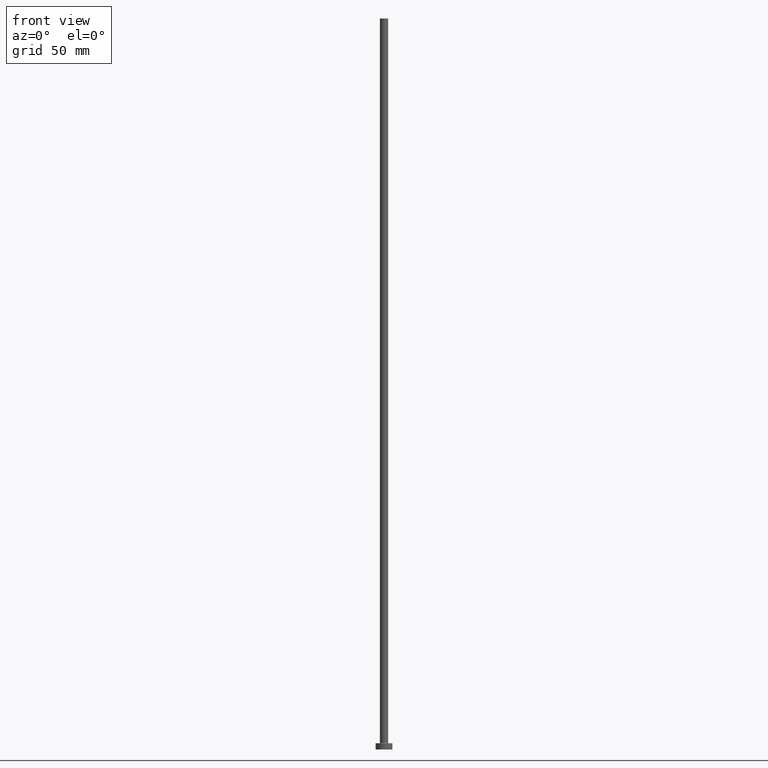
[diagram: clean part render]
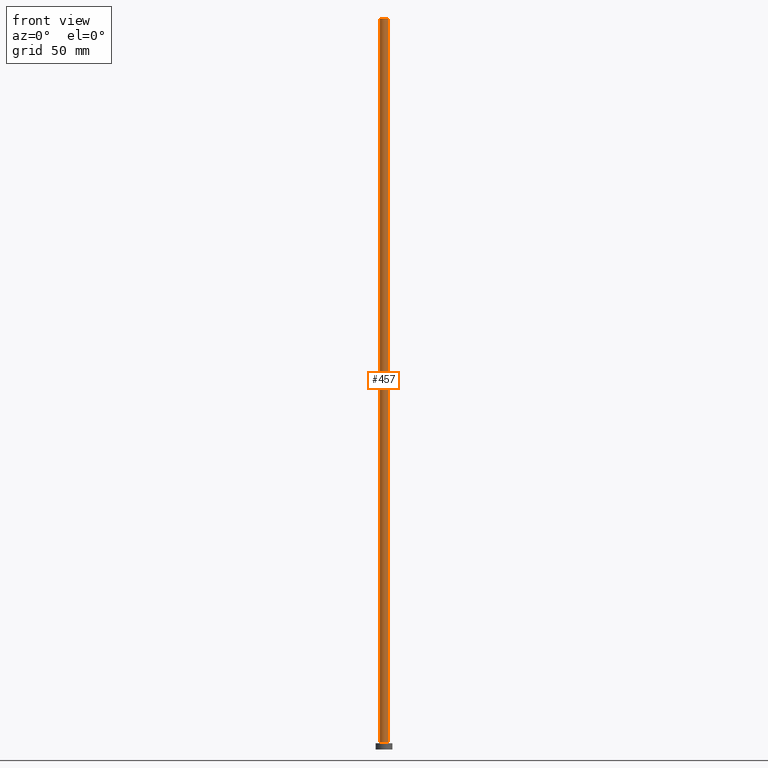
[diagram: same view with one face highlighted and labeled with its STEP entity id]
A machine part, front view. The second image highlights one B-rep face of the part: STEP entity #457.
In plain terms, the highlighted cylindrical surface (edge-blend (fillet) strip) has radius 2 mm, axis along (-0, -0, -1).
Its self-contained STEP definition (entity closure, byte-faithful):
#26 = EDGE_CURVE ( 'NONE', #344, #112, #301, .T. ) ;
#34 = VERTEX_POINT ( 'NONE', #376 ) ;
#73 = AXIS2_PLACEMENT_3D ( 'NONE', #198, #115, #260 ) ;
#76 = EDGE_CURVE ( 'NONE', #112, #34, #379, .T. ) ;
#112 = VERTEX_POINT ( 'NONE', #240 ) ;
#113 = CYLINDRICAL_SURFACE ( 'NONE', #205, 2.000000000000000000 ) ;
#115 = DIRECTION ( 'NONE',  ( 0.000000000000000000, 0.000000000000000000, 1.000000000000000000 ) ) ;
#121 = CARTESIAN_POINT ( 'NONE',  ( -2.000000000000000000, 0.000000000000000000, 350.0000000000000000 ) ) ;
#136 = ORIENTED_EDGE ( 'NONE', *, *, #373, .F. ) ;
#137 = VECTOR ( 'NONE', #374, 1000.000000000000000 ) ;
#148 = EDGE_LOOP ( 'NONE', ( #416, #136, #266, #387 ) ) ;
#157 = DIRECTION ( 'NONE',  ( -0.000000000000000000, -0.000000000000000000, -1.000000000000000000 ) ) ;
#195 = LINE ( 'NONE', #293, #272 ) ;
#198 = CARTESIAN_POINT ( 'NONE',  ( 0.000000000000000000, 0.000000000000000000, 3.300000000000025135 ) ) ;
#205 = AXIS2_PLACEMENT_3D ( 'NONE', #410, #157, #264 ) ;
#211 = CARTESIAN_POINT ( 'NONE',  ( 2.000000000000000000, 2.449293598294706414E-16, 350.0000000000000000 ) ) ;
#240 = CARTESIAN_POINT ( 'NONE',  ( -2.000000000000000000, 0.000000000000000000, 3.300000000000025135 ) ) ;
#253 = VERTEX_POINT ( 'NONE', #211 ) ;
#260 = DIRECTION ( 'NONE',  ( 1.000000000000000000, 0.000000000000000000, 0.000000000000000000 ) ) ;
#264 = DIRECTION ( 'NONE',  ( -1.000000000000000000, 0.000000000000000000, 0.000000000000000000 ) ) ;
#266 = ORIENTED_EDGE ( 'NONE', *, *, #26, .T. ) ;
#272 = VECTOR ( 'NONE', #443, 1000.000000000000000 ) ;
#281 = DIRECTION ( 'NONE',  ( 0.000000000000000000, 0.000000000000000000, 1.000000000000000000 ) ) ;
#287 = DIRECTION ( 'NONE',  ( 1.000000000000000000, 0.000000000000000000, 0.000000000000000000 ) ) ;
#293 = CARTESIAN_POINT ( 'NONE',  ( 2.000000000000000000, 2.449293598294706414E-16, 350.0000000000000000 ) ) ;
#301 = LINE ( 'NONE', #121, #137 ) ;
#329 = FACE_OUTER_BOUND ( 'NONE', #148, .T. ) ;
#344 = VERTEX_POINT ( 'NONE', #461 ) ;
#365 = CARTESIAN_POINT ( 'NONE',  ( 0.000000000000000000, 0.000000000000000000, 350.0000000000000000 ) ) ;
#373 = EDGE_CURVE ( 'NONE', #344, #253, #460, .T. ) ;
#374 = DIRECTION ( 'NONE',  ( -0.000000000000000000, -0.000000000000000000, -1.000000000000000000 ) ) ;
#376 = CARTESIAN_POINT ( 'NONE',  ( 2.000000000000000000, 2.449293598294706414E-16, 3.300000000000025135 ) ) ;
#379 = CIRCLE ( 'NONE', #73, 2.000000000000000000 ) ;
#387 = ORIENTED_EDGE ( 'NONE', *, *, #76, .T. ) ;
#410 = CARTESIAN_POINT ( 'NONE',  ( 0.000000000000000000, 0.000000000000000000, 350.0000000000000000 ) ) ;
#416 = ORIENTED_EDGE ( 'NONE', *, *, #427, .F. ) ;
#427 = EDGE_CURVE ( 'NONE', #253, #34, #195, .T. ) ;
#443 = DIRECTION ( 'NONE',  ( -0.000000000000000000, -0.000000000000000000, -1.000000000000000000 ) ) ;
#448 = AXIS2_PLACEMENT_3D ( 'NONE', #365, #281, #287 ) ;
#457 = ADVANCED_FACE ( 'NONE', ( #329 ), #113, .T. ) ;
#460 = CIRCLE ( 'NONE', #448, 2.000000000000000000 ) ;
#461 = CARTESIAN_POINT ( 'NONE',  ( -2.000000000000000000, 0.000000000000000000, 350.0000000000000000 ) ) ;